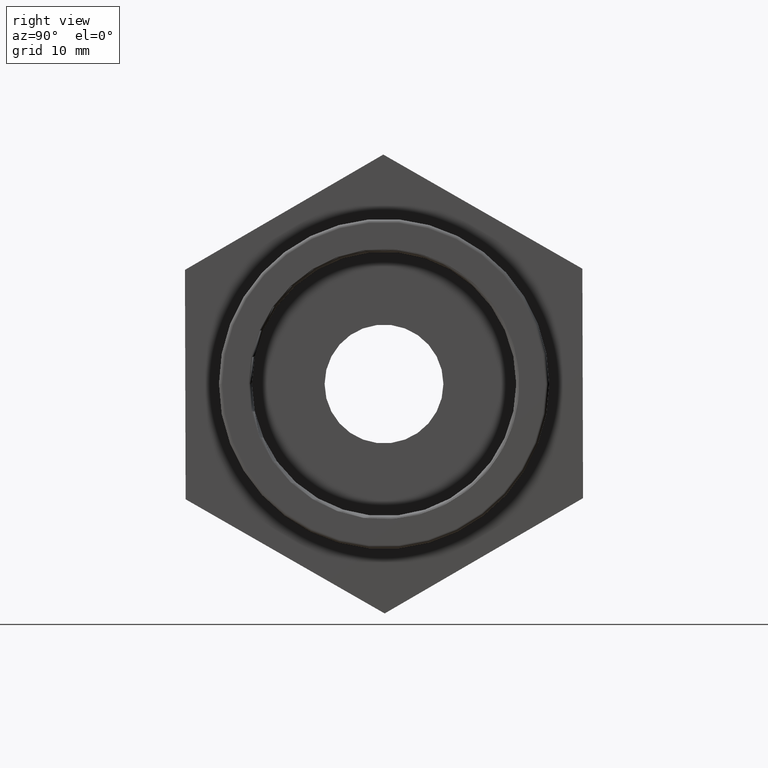
[diagram: clean part render]
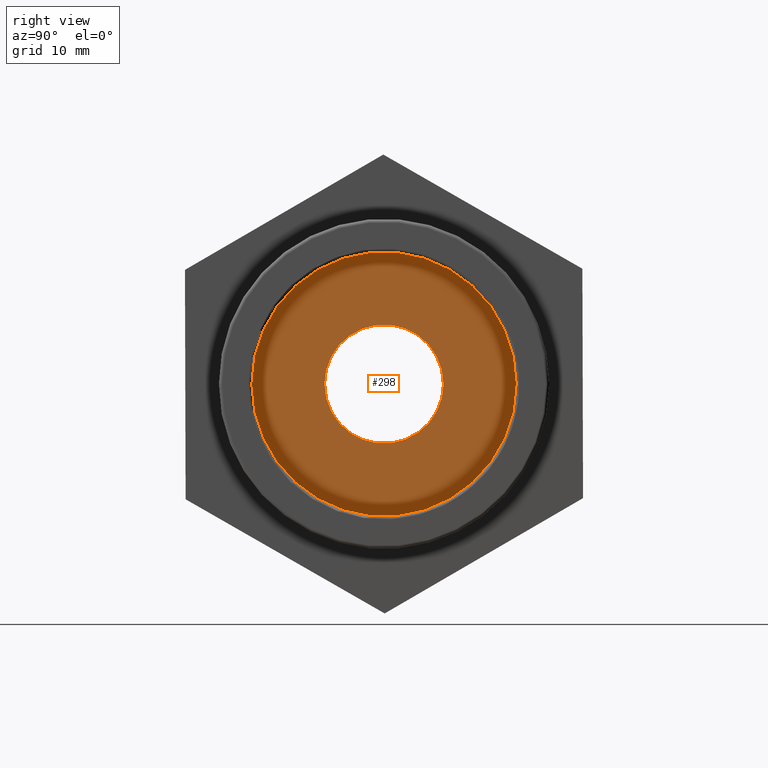
[diagram: same view with one face highlighted and labeled with its STEP entity id]
A machine part, right view. The second image highlights one B-rep face of the part: STEP entity #298.
In plain terms, the highlighted planar face has unit normal (1, 0, 0).
Its self-contained STEP definition (entity closure, byte-faithful):
#65=PLANE('',#335);
#80=FACE_BOUND('',#135,.T.);
#101=FACE_OUTER_BOUND('',#134,.T.);
#134=EDGE_LOOP('',(#260));
#135=EDGE_LOOP('',(#261));
#143=CIRCLE('',#309,13.2996);
#153=CIRCLE('',#334,5.98);
#157=VERTEX_POINT('',#438);
#179=VERTEX_POINT('',#503);
#183=EDGE_CURVE('',#157,#157,#143,.T.);
#211=EDGE_CURVE('',#179,#179,#153,.T.);
#260=ORIENTED_EDGE('',*,*,#183,.F.);
#261=ORIENTED_EDGE('',*,*,#211,.T.);
#298=ADVANCED_FACE('',(#101,#80),#65,.T.);
#309=AXIS2_PLACEMENT_3D('',#439,#352,#353);
#334=AXIS2_PLACEMENT_3D('',#504,#420,#421);
#335=AXIS2_PLACEMENT_3D('',#505,#422,#423);
#352=DIRECTION('center_axis',(-1.,-1.83697019872103E-16,0.));
#353=DIRECTION('ref_axis',(0.,0.,1.));
#420=DIRECTION('center_axis',(-1.,-1.83697019872103E-16,0.));
#421=DIRECTION('ref_axis',(0.,0.,1.));
#422=DIRECTION('center_axis',(1.,1.83697019872103E-16,0.));
#423=DIRECTION('ref_axis',(0.,0.,-1.));
#438=CARTESIAN_POINT('',(9.50000000000001,-13.2996,0.));
#439=CARTESIAN_POINT('Origin',(9.5,5.51091059616309E-15,0.));
#503=CARTESIAN_POINT('',(9.5,-5.98,0.));
#504=CARTESIAN_POINT('Origin',(9.5,5.51091059616309E-15,0.));
#505=CARTESIAN_POINT('Origin',(9.50000000000001,-13.2996,0.));